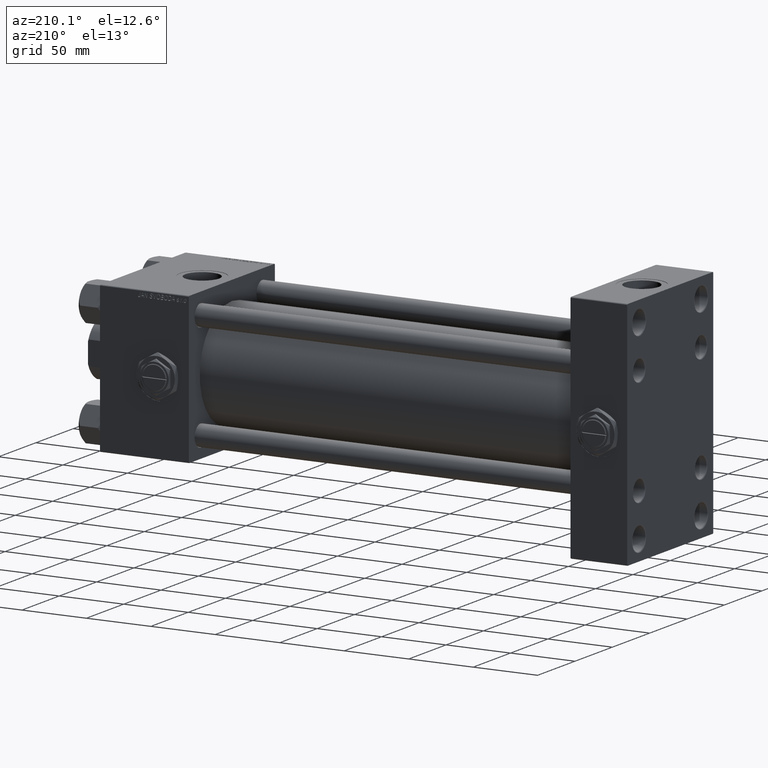
[diagram: clean part render]
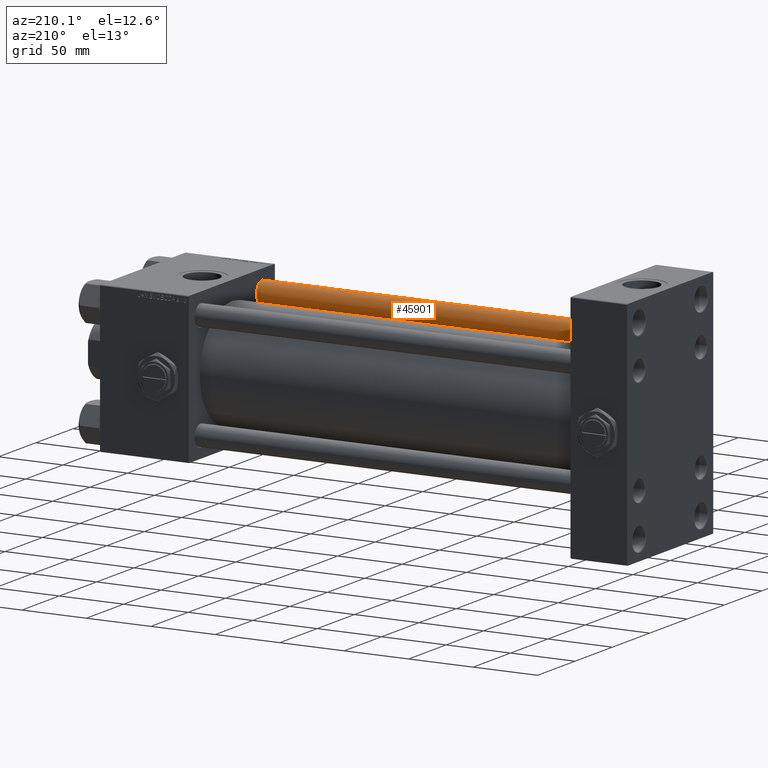
[diagram: same view with one face highlighted and labeled with its STEP entity id]
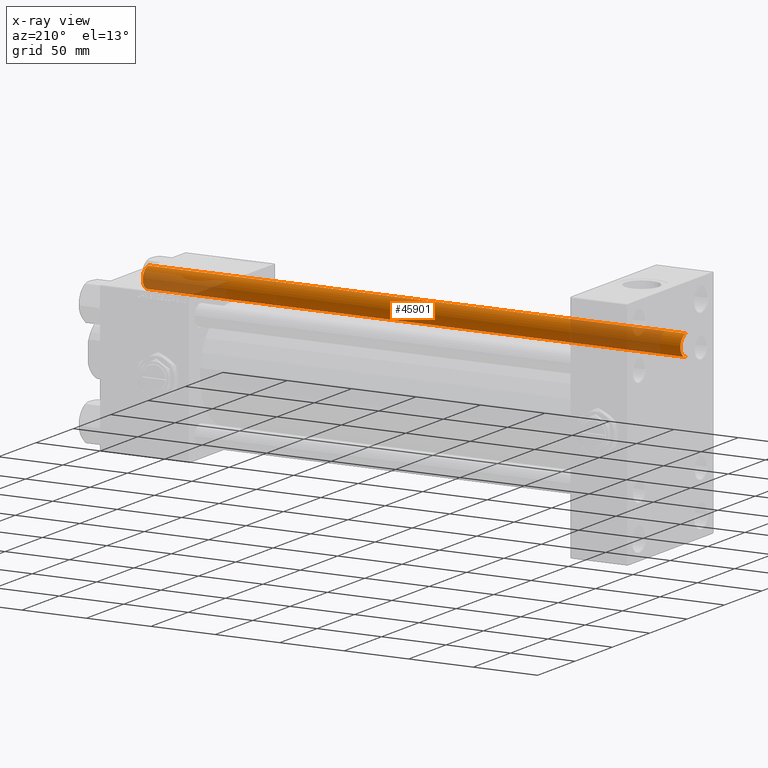
[diagram: x-ray of the same camera — body ghosted, the highlighted face saturated]
A machine part, auxiliary view. The second image highlights one B-rep face of the part: STEP entity #45901.
The next image is the same camera in x-ray: the body ghosted, the highlighted face saturated — about 28% of this face is hidden behind the body in this view.
In plain terms, the highlighted cylindrical surface (edge-blend (fillet) strip) has radius 8 mm, axis along (-1, 0, -0).
Its self-contained STEP definition (entity closure, byte-faithful):
#3329 = CARTESIAN_POINT ( 'NONE',  ( 8.000000000000000000, 9.797174393178825657E-16, 417.5000000000001137 ) ) ;
#3765 = CARTESIAN_POINT ( 'NONE',  ( 0.000000000000000000, 0.000000000000000000, 417.5000000000001137 ) ) ;
#3776 = CARTESIAN_POINT ( 'NONE',  ( 0.000000000000000000, 0.000000000000000000, 0.5000000000000004441 ) ) ;
#4814 = AXIS2_PLACEMENT_3D ( 'NONE', #3776, #19947, #15169 ) ;
#6228 = ORIENTED_EDGE ( 'NONE', *, *, #23201, .T. ) ;
#7994 = DIRECTION ( 'NONE',  ( 0.000000000000000000, 0.000000000000000000, -1.000000000000000000 ) ) ;
#9462 = EDGE_CURVE ( 'NONE', #39363, #28207, #18377, .T. ) ;
#10589 = ORIENTED_EDGE ( 'NONE', *, *, #49071, .T. ) ;
#11742 = EDGE_LOOP ( 'NONE', ( #6228, #10589, #13962, #48977 ) ) ;
#13962 = ORIENTED_EDGE ( 'NONE', *, *, #9462, .T. ) ;
#14290 = DIRECTION ( 'NONE',  ( -1.000000000000000000, 0.000000000000000000, 0.000000000000000000 ) ) ;
#15169 = DIRECTION ( 'NONE',  ( 1.000000000000000000, 0.000000000000000000, 0.000000000000000000 ) ) ;
#18338 = CARTESIAN_POINT ( 'NONE',  ( -8.000000000000000000, 0.000000000000000000, 417.5000000000001137 ) ) ;
#18377 = CIRCLE ( 'NONE', #4814, 8.000000000000000000 ) ;
#19947 = DIRECTION ( 'NONE',  ( -0.000000000000000000, -0.000000000000000000, 1.000000000000000000 ) ) ;
#20202 = DIRECTION ( 'NONE',  ( 1.000000000000000000, 0.000000000000000000, 0.000000000000000000 ) ) ;
#23188 = CARTESIAN_POINT ( 'NONE',  ( -8.000000000000000000, 0.000000000000000000, 418.0000000000000000 ) ) ;
#23201 = EDGE_CURVE ( 'NONE', #35944, #32594, #32305, .T. ) ;
#24919 = CARTESIAN_POINT ( 'NONE',  ( -8.000000000000000000, 0.000000000000000000, 0.5000000000000004441 ) ) ;
#26261 = FACE_OUTER_BOUND ( 'NONE', #11742, .T. ) ;
#26357 = CARTESIAN_POINT ( 'NONE',  ( 8.000000000000000000, 9.797174393178825657E-16, 0.5000000000000004441 ) ) ;
#26917 = DIRECTION ( 'NONE',  ( -0.000000000000000000, -0.000000000000000000, -1.000000000000000000 ) ) ;
#27469 = EDGE_CURVE ( 'NONE', #35944, #28207, #47637, .T. ) ;
#28207 = VERTEX_POINT ( 'NONE', #24919 ) ;
#30484 = LINE ( 'NONE', #49639, #38065 ) ;
#32305 = CIRCLE ( 'NONE', #39098, 8.000000000000000000 ) ;
#32594 = VERTEX_POINT ( 'NONE', #3329 ) ;
#33688 = DIRECTION ( 'NONE',  ( -0.000000000000000000, -0.000000000000000000, -1.000000000000000000 ) ) ;
#35944 = VERTEX_POINT ( 'NONE', #18338 ) ;
#38065 = VECTOR ( 'NONE', #50167, 1000.000000000000000 ) ;
#39098 = AXIS2_PLACEMENT_3D ( 'NONE', #3765, #7994, #20202 ) ;
#39363 = VERTEX_POINT ( 'NONE', #26357 ) ;
#42467 = CARTESIAN_POINT ( 'NONE',  ( 0.000000000000000000, 0.000000000000000000, 418.0000000000000000 ) ) ;
#42724 = CYLINDRICAL_SURFACE ( 'NONE', #43177, 8.000000000000000000 ) ;
#43177 = AXIS2_PLACEMENT_3D ( 'NONE', #42467, #33688, #14290 ) ;
#45901 = ADVANCED_FACE ( 'NONE', ( #26261 ), #42724, .T. ) ;
#47637 = LINE ( 'NONE', #23188, #52023 ) ;
#48977 = ORIENTED_EDGE ( 'NONE', *, *, #27469, .F. ) ;
#49071 = EDGE_CURVE ( 'NONE', #32594, #39363, #30484, .T. ) ;
#49639 = CARTESIAN_POINT ( 'NONE',  ( 8.000000000000000000, 9.797174393178825657E-16, 418.0000000000000000 ) ) ;
#50167 = DIRECTION ( 'NONE',  ( -0.000000000000000000, -0.000000000000000000, -1.000000000000000000 ) ) ;
#52023 = VECTOR ( 'NONE', #26917, 1000.000000000000000 ) ;